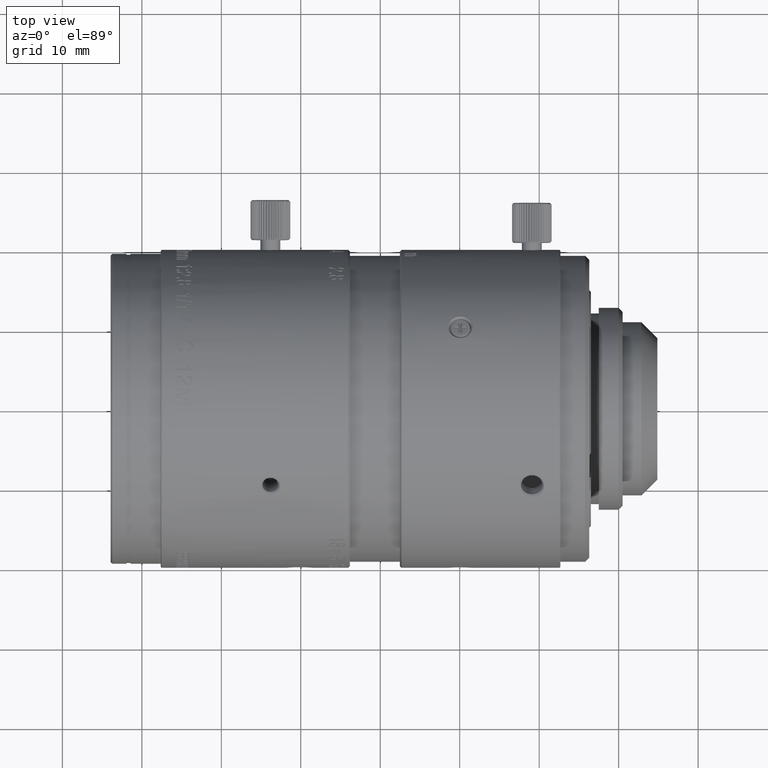
[diagram: clean part render]
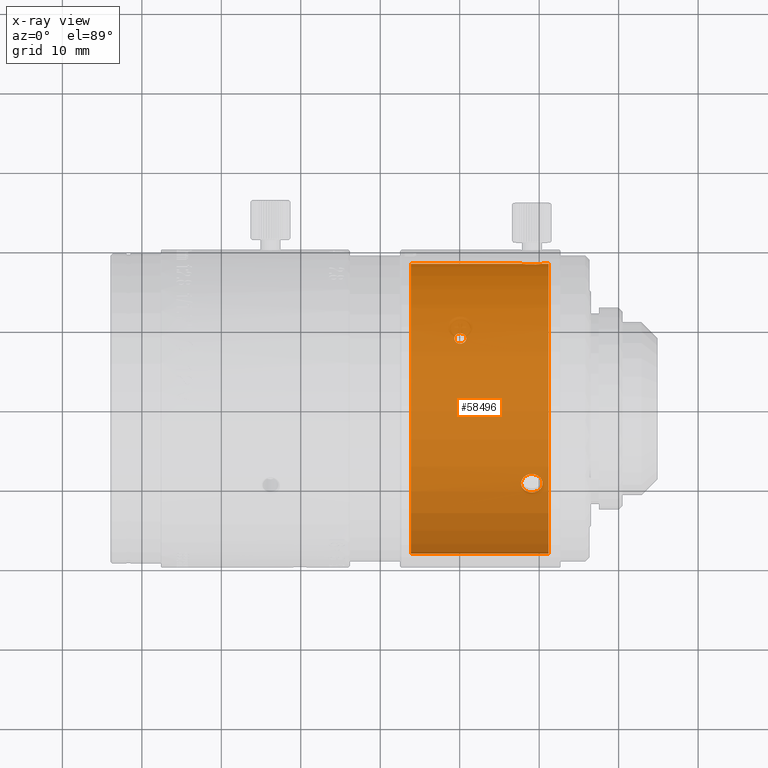
[diagram: x-ray — body ghosted, one internal face saturated and labeled with its STEP entity id]
A machine part, top view, then the same camera in x-ray: the body is ghosted and one INTERNAL B-rep face — a face not visible from any outside direction — is saturated and labeled: STEP entity #58496.
In plain terms, the highlighted cylindrical surface (partial cylindrical patch) has radius 18.25 mm, axis along (-1, 0, 0).
Its self-contained STEP definition (entity closure, byte-faithful):
#473 = CARTESIAN_POINT ( 'NONE',  ( 18.21201994344940189, 1.178806398260078048, 3.182209422252992859 ) ) ;
#763 = CARTESIAN_POINT ( 'NONE',  ( 18.25000000000000000, -2.223591347414999774E-10, 0.4000000000004000356 ) ) ;
#793 = CARTESIAN_POINT ( 'NONE',  ( -10.24160475624207045, 15.10552053162313868, 2.847730534119028878 ) ) ;
#1005 = CARTESIAN_POINT ( 'NONE',  ( 18.23818690041514756, 0.6767688913905309800, 3.681533865024833929 ) ) ;
#1874 = CARTESIAN_POINT ( 'NONE',  ( -8.171224282270181050, 16.31899554044267830, 3.325672726727420425 ) ) ;
#1932 = CARTESIAN_POINT ( 'NONE',  ( 9.637747126533200870, 15.49778430396090734, 11.03617175232352920 ) ) ;
#2651 = CARTESIAN_POINT ( 'NONE',  ( 18.23735179251326954, 0.6776517056569397734, 1.331564555934361849 ) ) ;
#2957 = CARTESIAN_POINT ( 'NONE',  ( -8.967816235690218463, 15.89568390805708908, 3.849661445437829066 ) ) ;
#3186 = CARTESIAN_POINT ( 'NONE',  ( 18.20244588868660074, 1.317173215997431646, 2.200826328364392737 ) ) ;
#3635 = B_SPLINE_CURVE_WITH_KNOTS ( 'NONE', 3,
 ( #16164, #50179, #40700, #66922, #75300, #17824, #83123, #32333, #84239, #74731, #7818, #75863, #101523, #102097, #66379, #109918, #25087, #33442 ),
 .UNSPECIFIED., .F., .F.,
 ( 4, 2, 2, 2, 2, 2, 2, 2, 4 ),
 ( 0.000000000000000000, 0.1249999999999999722, 0.2499999999999999445, 0.3749999999999999445, 0.5000000000000000000, 0.6250000000000001110, 0.7500000000000000000, 0.8750000000000000000, 1.000000000000000000 ),
 .UNSPECIFIED. ) ;
#3843 = EDGE_LOOP ( 'NONE', ( #24070, #89315 ) ) ;
#4316 = EDGE_CURVE ( 'NONE', #25422, #9089, #25828, .T. ) ;
#5879 = CARTESIAN_POINT ( 'NONE',  ( 8.795409768410802798, 15.99099535615530421, 10.84483248480708717 ) ) ;
#6272 = CARTESIAN_POINT ( 'NONE',  ( -8.399066606015200165, 16.20291269898136122, 1.418446653912373456 ) ) ;
#7080 = CARTESIAN_POINT ( 'NONE',  ( 18.19999999998999840, 1.350000000000000089, 2.499999990045000064 ) ) ;
#7444 = VERTEX_POINT ( 'NONE', #45672 ) ;
#7525 = CARTESIAN_POINT ( 'NONE',  ( 8.485240818254599304, 16.15749620143741083, 11.69784373218579887 ) ) ;
#7818 = CARTESIAN_POINT ( 'NONE',  ( -18.23541428679907739, 0.7305228261633018860, 11.30281319867156675 ) ) ;
#8075 = CARTESIAN_POINT ( 'NONE',  ( 8.467618639792814150, 16.16669213542273909, 11.40136035594729513 ) ) ;
#8347 = CARTESIAN_POINT ( 'NONE',  ( -18.25000000000000000, 2.175943846334000016E-10, 12.25000000000000000 ) ) ;
#9089 = VERTEX_POINT ( 'NONE', #79226 ) ;
#9375 = CARTESIAN_POINT ( 'NONE',  ( 18.23176373900325231, 0.8255521374181046257, 3.583173762509234805 ) ) ;
#9912 = CARTESIAN_POINT ( 'NONE',  ( 18.24252420069907998, 0.5219116463701478636, 1.254952901927654185 ) ) ;
#10286 = CARTESIAN_POINT ( 'NONE',  ( 9.521160142675507032, 15.56968116500071631, 12.10012759626849288 ) ) ;
#12413 = ORIENTED_EDGE ( 'NONE', *, *, #75764, .T. ) ;
#12928 = CARTESIAN_POINT ( 'NONE',  ( -18.25000000000000000, 1.768075854399999891E-10, 10.75000000000000000 ) ) ;
#14215 = CARTESIAN_POINT ( 'NONE',  ( 9.125000000000998313, 15.80496361907000136, 10.75000000000000000 ) ) ;
#14623 = CARTESIAN_POINT ( 'NONE',  ( -8.084358722268296660, 16.36185694119212997, 1.819473883120202418 ) ) ;
#14916 = ORIENTED_EDGE ( 'NONE', *, *, #4316, .T. ) ;
#15171 = CARTESIAN_POINT ( 'NONE',  ( -9.429833441454636755, 15.62587932341974728, 1.184885520350414723 ) ) ;
#15794 = DIRECTION ( 'NONE',  ( -3.789561257389000015E-14, 2.964768229334999793E-10, 1.000000000000000000 ) ) ;
#16164 = CARTESIAN_POINT ( 'NONE',  ( -18.25000000000000000, 2.175943846334000016E-10, 12.25000000000000000 ) ) ;
#16947 = VERTEX_POINT ( 'NONE', #94242 ) ;
#17734 = CARTESIAN_POINT ( 'NONE',  ( 18.24741334690450500, 0.3484016274931899249, 3.816306773004967123 ) ) ;
#17744 = CARTESIAN_POINT ( 'NONE',  ( 18.24755892267724278, 0.3440189633694313298, 1.181284329033035707 ) ) ;
#17824 = CARTESIAN_POINT ( 'NONE',  ( -18.24021923160532310, 0.6015497463485176555, 11.95882438390888325 ) ) ;
#18299 = CARTESIAN_POINT ( 'NONE',  ( 18.21845460298281694, 1.080119088565542063, 3.329524280401755298 ) ) ;
#18307 = CARTESIAN_POINT ( 'NONE',  ( 18.20892113521034972, 1.224192722461206140, 1.927717501249596843 ) ) ;
#18334 = B_SPLINE_CURVE_WITH_KNOTS ( 'NONE', 3,
 ( #53219, #62690, #87280, #52139, #10286, #86199, #86732, #62139, #44309, #78341, #69955, #104555, #1932, #44864, #78902, #36459, #53772, #87846 ),
 .UNSPECIFIED., .F., .F.,
 ( 4, 2, 2, 2, 2, 2, 2, 2, 4 ),
 ( 0.000000000000000000, 0.1250000000000010270, 0.2500000000000009992, 0.3750000000000009992, 0.5000000000000009992, 0.6250000000000009992, 0.7500000000000009992, 0.8750000000000011102, 1.000000000000000000 ),
 .UNSPECIFIED. ) ;
#18438 = EDGE_CURVE ( 'NONE', #33121, #49466, #105237, .T. ) ;
#18835 = CARTESIAN_POINT ( 'NONE',  ( 18.20723869925913618, 1.248765241872661580, 1.987067598657128453 ) ) ;
#19913 = B_SPLINE_CURVE_WITH_KNOTS ( 'NONE', 3,
 ( #14215, #97929, #82312, #5879, #39871, #73905, #65534, #81195, #8075, #66091, #7525, #48796, #50457, #41549, #100136, #66640, #59938, #109628 ),
 .UNSPECIFIED., .F., .F.,
 ( 4, 2, 2, 2, 2, 2, 2, 2, 4 ),
 ( 0.000000000000000000, 0.1250000000000000000, 0.2500000000000000000, 0.3750000000000000000, 0.5000000000000000000, 0.6250000000000000000, 0.7500000000000000000, 0.8750000000000000000, 1.000000000000000000 ),
 .UNSPECIFIED. ) ;
#19926 = CARTESIAN_POINT ( 'NONE',  ( 18.19999999998999840, 1.349999999386048533, 2.416741880223429284 ) ) ;
#20241 = CARTESIAN_POINT ( 'NONE',  ( -8.526390649432634916, 16.13662064551179043, 3.677446213509210970 ) ) ;
#21748 = B_SPLINE_CURVE_WITH_KNOTS ( 'NONE', 3,
 ( #77424, #94176, #109817, #473, #18299, #9375, #1005, #17734, #101995, #24982 ),
 .UNSPECIFIED., .F., .F.,
 ( 4, 2, 2, 2, 4 ),
 ( 0.000000000000000000, 0.2500000000000000000, 0.5000000000000000000, 0.7500000000000000000, 1.000000000000000000 ),
 .UNSPECIFIED. ) ;
#21910 = CARTESIAN_POINT ( 'NONE',  ( -7.930929461486919685, 16.43663158563608917, 2.321896040456643551 ) ) ;
#21920 = VERTEX_POINT ( 'NONE', #104677 ) ;
#22444 = CARTESIAN_POINT ( 'NONE',  ( -9.282157949082110449, 15.71419863531012950, 1.150338553421159205 ) ) ;
#23533 = CARTESIAN_POINT ( 'NONE',  ( -10.12861132931660180, 15.18151262936952151, 1.822155060468384491 ) ) ;
#24070 = ORIENTED_EDGE ( 'NONE', *, *, #52454, .T. ) ;
#24163 = ORIENTED_EDGE ( 'NONE', *, *, #87492, .T. ) ;
#24201 = DIRECTION ( 'NONE',  ( -1.000000000000000000, 1.937617877964999626E-11, 0.000000000000000000 ) ) ;
#24436 = VECTOR ( 'NONE', #89054, 1000.000000000000000 ) ;
#24561 = DIRECTION ( 'NONE',  ( 0.000000000000000000, 4.076506073653000229E-11, 1.000000000000000000 ) ) ;
#24659 = ORIENTED_EDGE ( 'NONE', *, *, #73863, .T. ) ;
#24982 = CARTESIAN_POINT ( 'NONE',  ( 18.25000000000000000, 0.000000000000000000, 3.850000000000000089 ) ) ;
#25087 = CARTESIAN_POINT ( 'NONE',  ( -18.24999999999905498, 0.09801174784820172736, 10.75000000000000178 ) ) ;
#25422 = VERTEX_POINT ( 'NONE', #45081 ) ;
#25521 = DIRECTION ( 'NONE',  ( 0.000000000000000000, 0.000000000000000000, 1.000000000000000000 ) ) ;
#25828 = LINE ( 'NONE', #763, #79417 ) ;
#26633 = CARTESIAN_POINT ( 'NONE',  ( 18.19999999998999840, 1.350000000000000089, 2.499999990045000064 ) ) ;
#26944 = CARTESIAN_POINT ( 'NONE',  ( -9.832600706811339464, 15.37526140016607101, 3.581553348860236685 ) ) ;
#27188 = CARTESIAN_POINT ( 'NONE',  ( 18.22071367410376652, 1.036727549627280309, 1.627550106102633620 ) ) ;
#27493 = CARTESIAN_POINT ( 'NONE',  ( -9.277656032226021310, 15.71685698508687423, 3.850333493162181320 ) ) ;
#27726 = CARTESIAN_POINT ( 'NONE',  ( 18.24113940491198349, 0.5680101965822746957, 1.275109593344490699 ) ) ;
#28044 = CARTESIAN_POINT ( 'NONE',  ( -7.930929516922359035, 16.43663155888789618, 2.677905817365963337 ) ) ;
#28269 = CARTESIAN_POINT ( 'NONE',  ( 18.25000000000000000, 0.000000000000000000, 1.149999999999999911 ) ) ;
#29557 = ORIENTED_EDGE ( 'NONE', *, *, #74398, .T. ) ;
#31912 = CARTESIAN_POINT ( 'NONE',  ( -10.24108617161461687, 15.10586797246788215, 2.150944013116264930 ) ) ;
#32333 = CARTESIAN_POINT ( 'NONE',  ( -18.23538161100663402, 0.7312877936519367461, 11.69376854395387966 ) ) ;
#33121 = VERTEX_POINT ( 'NONE', #89526 ) ;
#33178 = DIRECTION ( 'NONE',  ( 1.000000000000000000, 0.000000000000000000, 0.000000000000000000 ) ) ;
#33442 = CARTESIAN_POINT ( 'NONE',  ( -18.25000000000000000, 1.768075854399999891E-10, 10.75000000000000000 ) ) ;
#34769 = CARTESIAN_POINT ( 'NONE',  ( -7.930865704891999712, 16.43666234888000233, 2.500000000000000000 ) ) ;
#34998 = CARTESIAN_POINT ( 'NONE',  ( 18.25000000000000711, 0.1666472960250791058, 1.150000000000000133 ) ) ;
#35308 = CARTESIAN_POINT ( 'NONE',  ( -10.12760440312805166, 15.18218849731848685, 3.180526117287121757 ) ) ;
#35567 = AXIS2_PLACEMENT_3D ( 'NONE', #84477, #100652, #24201 ) ;
#36459 = CARTESIAN_POINT ( 'NONE',  ( 9.290994109297280090, 15.70821817163643352, 10.76844117733740447 ) ) ;
#36514 = VECTOR ( 'NONE', #39215, 1000.000000000000000 ) ;
#36632 = CARTESIAN_POINT ( 'NONE',  ( 18.24226666234678618, 0.5307611182724265575, 1.258707180324143859 ) ) ;
#37180 = CARTESIAN_POINT ( 'NONE',  ( 18.20703431855590182, 1.251746418612266432, 1.994366992552249584 ) ) ;
#37719 = VECTOR ( 'NONE', #24561, 1000.000000000000000 ) ;
#39215 = DIRECTION ( 'NONE',  ( 0.000000000000000000, -1.605545610301000170E-11, 1.000000000000000000 ) ) ;
#39433 = EDGE_LOOP ( 'NONE', ( #14916, #101518, #12413, #29557, #24659, #42064, #107776, #93121, #49620 ) ) ;
#39871 = CARTESIAN_POINT ( 'NONE',  ( 8.723159346361796906, 16.03040713956539420, 10.89987240374990840 ) ) ;
#40271 = CARTESIAN_POINT ( 'NONE',  ( -9.711528076457131675, 15.45238123344871184, 1.322553780413593616 ) ) ;
#40700 = CARTESIAN_POINT ( 'NONE',  ( -18.24922421367979553, 0.1923018803100600693, 12.23190358067597039 ) ) ;
#41549 = CARTESIAN_POINT ( 'NONE',  ( 8.726917458131071115, 16.02836235197037240, 12.10333193014129982 ) ) ;
#41793 = CIRCLE ( 'NONE', #100570, 18.25000000000000000 ) ;
#42064 = ORIENTED_EDGE ( 'NONE', *, *, #65647, .F. ) ;
#42777 = B_SPLINE_CURVE_WITH_KNOTS ( 'NONE', 3,
 ( #26633, #19926, #45577, #3186, #79621, #94185, #60688, #86908, #94731, #37180, #18835, #18307, #104192, #79084, #27188, #88013, #70129, #2651, #51764, #104730, #27726, #52313, #36632, #86366, #9912, #17744, #34998, #28269 ),
 .UNSPECIFIED., .F., .F.,
 ( 4, 2, 2, 1, 1, 2, 2, 2, 2, 2, 2, 1, 1, 2, 2, 4 ),
 ( 0.000000000000000000, 0.1250000000000019984, 0.1875000000000027200, 0.2187500000000031086, 0.2343750000000033029, 0.2421875000000033862, 0.2500000000000034972, 0.3750000000000038303, 0.5000000000000041078, 0.6250000000000044409, 0.6875000000000048850, 0.7187500000000049960, 0.7343750000000051070, 0.7421875000000049960, 0.7500000000000048850, 1.000000000000000000 ),
 .UNSPECIFIED. ) ;
#44309 = CARTESIAN_POINT ( 'NONE',  ( 9.766956764539722613, 15.41651891933187990, 11.59863964406244818 ) ) ;
#44864 = CARTESIAN_POINT ( 'NONE',  ( 9.517510248787850458, 15.57191339146587872, 10.89666806984771341 ) ) ;
#45081 = CARTESIAN_POINT ( 'NONE',  ( 18.25000000000000000, 0.000000000000000000, 0.4000000000004000356 ) ) ;
#45348 = CARTESIAN_POINT ( 'NONE',  ( -10.26913429510999975, 15.08666234887999913, 2.499999971296000378 ) ) ;
#45577 = CARTESIAN_POINT ( 'NONE',  ( 18.20061147216415520, 1.342277398203096217, 2.330908151477031343 ) ) ;
#45672 = CARTESIAN_POINT ( 'NONE',  ( 9.125000000002000178, 15.80496361907000136, 12.25000000000000000 ) ) ;
#48796 = CARTESIAN_POINT ( 'NONE',  ( 8.553633817459814992, 16.12139397695019838, 11.88211497729700028 ) ) ;
#49466 = VERTEX_POINT ( 'NONE', #12928 ) ;
#49620 = ORIENTED_EDGE ( 'NONE', *, *, #94785, .T. ) ;
#49745 = CARTESIAN_POINT ( 'NONE',  ( -7.930865704891999712, 16.43666234888000233, 2.500000000000000000 ) ) ;
#50179 = CARTESIAN_POINT ( 'NONE',  ( -18.24999999999883116, 0.09893049394060104973, 12.25000000000000355 ) ) ;
#50457 = CARTESIAN_POINT ( 'NONE',  ( 8.602601346345547739, 16.09542599880312608, 11.96382824768745756 ) ) ;
#50476 = DIRECTION ( 'NONE',  ( 0.000000000000000000, 0.000000000000000000, 1.000000000000000000 ) ) ;
#51697 = CARTESIAN_POINT ( 'NONE',  ( 9.125000000000998313, 15.80496361907000136, 10.75000000000000000 ) ) ;
#51764 = CARTESIAN_POINT ( 'NONE',  ( 18.23865415366183385, 0.6419706774755093992, 1.311823642223150621 ) ) ;
#52139 = CARTESIAN_POINT ( 'NONE',  ( 9.450903326031971474, 15.61254597421051393, 12.15516751518353900 ) ) ;
#52313 = CARTESIAN_POINT ( 'NONE',  ( 18.24194517491636702, 0.5416683561406349101, 1.263388880075568821 ) ) ;
#52371 = CARTESIAN_POINT ( 'NONE',  ( -10.26913429510999975, 15.08666234887999913, 2.499999971296000378 ) ) ;
#52454 = EDGE_CURVE ( 'NONE', #68473, #16947, #89417, .T. ) ;
#53219 = CARTESIAN_POINT ( 'NONE',  ( 9.125000000002000178, 15.80496361907000136, 12.25000000000000000 ) ) ;
#53772 = CARTESIAN_POINT ( 'NONE',  ( 9.209801147306585278, 15.75600365384097579, 10.75000000000000178 ) ) ;
#54441 = VERTEX_POINT ( 'NONE', #51697 ) ;
#57022 = CARTESIAN_POINT ( 'NONE',  ( -8.529642128600153583, 16.13490580706423216, 1.320418745151348938 ) ) ;
#57191 = FACE_BOUND ( 'NONE', #71515, .T. ) ;
#57738 = FACE_OUTER_BOUND ( 'NONE', #39433, .T. ) ;
#58496 = ADVANCED_FACE ( 'NONE', ( #57738, #109647, #57191 ), #91250, .F. ) ;
#59938 = CARTESIAN_POINT ( 'NONE',  ( 9.040198852679404595, 15.85392358429913529, 12.25000000000000178 ) ) ;
#59947 = CARTESIAN_POINT ( 'NONE',  ( 18.25000000000000000, 0.000000000000000000, 17.69999999999999929 ) ) ;
#60688 = CARTESIAN_POINT ( 'NONE',  ( 18.20533127300837251, 1.276418349102181438, 2.059334156763576562 ) ) ;
#62084 = CARTESIAN_POINT ( 'NONE',  ( -9.426083256348725570, 15.62814559343611975, 3.816318324593665601 ) ) ;
#62139 = CARTESIAN_POINT ( 'NONE',  ( 9.751096170967988641, 15.42660199852584135, 11.69342054739705539 ) ) ;
#62690 = CARTESIAN_POINT ( 'NONE',  ( 9.210680058455013253, 15.75549621425282076, 12.25000000000000355 ) ) ;
#65534 = CARTESIAN_POINT ( 'NONE',  ( 8.551069903782234860, 16.12275191327516310, 11.12310877173660018 ) ) ;
#65647 = EDGE_CURVE ( 'NONE', #95442, #93096, #65859, .T. ) ;
#65859 = LINE ( 'NONE', #68093, #37719 ) ;
#66091 = CARTESIAN_POINT ( 'NONE',  ( 8.467928082200833373, 16.16653005518440622, 11.60149013695270703 ) ) ;
#66379 = CARTESIAN_POINT ( 'NONE',  ( -18.24640522698238954, 0.3733557737923145492, 10.84235644520383346 ) ) ;
#66501 = CARTESIAN_POINT ( 'NONE',  ( -8.972369393929289672, 15.89311430779291534, 1.149666507946828675 ) ) ;
#66640 = CARTESIAN_POINT ( 'NONE',  ( 8.958218930161883975, 15.90034601088958688, 12.23155882266260797 ) ) ;
#66922 = CARTESIAN_POINT ( 'NONE',  ( -18.24631316060136044, 0.3784447906806577278, 12.15517369962487493 ) ) ;
#68093 = CARTESIAN_POINT ( 'NONE',  ( -18.25000000000000000, 2.175943846334000016E-10, 12.25000000000000000 ) ) ;
#68473 = VERTEX_POINT ( 'NONE', #52371 ) ;
#69955 = CARTESIAN_POINT ( 'NONE',  ( 9.750181762871163116, 15.42718220655390304, 11.30215626782330851 ) ) ;
#70129 = CARTESIAN_POINT ( 'NONE',  ( 18.23293606754282692, 0.7901064354701725634, 1.401799332934495323 ) ) ;
#70427 = CARTESIAN_POINT ( 'NONE',  ( -10.26907577892596635, 15.08670217945879521, 2.678103938415117735 ) ) ;
#71515 = EDGE_LOOP ( 'NONE', ( #24163, #95792 ) ) ;
#72276 = CARTESIAN_POINT ( 'NONE',  ( -18.25000000000000000, 4.397657829812000191E-10, 0.4000000000004000356 ) ) ;
#72659 = CARTESIAN_POINT ( 'NONE',  ( -18.25000000000000000, 4.397639656475000487E-10, 17.69999999999999929 ) ) ;
#72766 = AXIS2_PLACEMENT_3D ( 'NONE', #76154, #50476, #33178 ) ;
#72911 = CIRCLE ( 'NONE', #35567, 18.25000000000000000 ) ;
#73863 = EDGE_CURVE ( 'NONE', #101614, #93096, #41793, .T. ) ;
#73905 = CARTESIAN_POINT ( 'NONE',  ( 8.599152214641581082, 16.09726819158062838, 11.04115147098049476 ) ) ;
#74398 = EDGE_CURVE ( 'NONE', #21920, #101614, #99493, .T. ) ;
#74731 = CARTESIAN_POINT ( 'NONE',  ( -18.23458646504654013, 0.7499042990840875111, 11.39896856515190215 ) ) ;
#75300 = CARTESIAN_POINT ( 'NONE',  ( -18.24431859288017321, 0.4607589346324100776, 12.10009066382320064 ) ) ;
#75764 = EDGE_CURVE ( 'NONE', #81739, #21920, #21748, .T. ) ;
#75863 = CARTESIAN_POINT ( 'NONE',  ( -18.23834860338698505, 0.6531753455799950148, 11.11815492333882993 ) ) ;
#76154 = CARTESIAN_POINT ( 'NONE',  ( 0.000000000000000000, 0.000000000000000000, 0.000000000000000000 ) ) ;
#76861 = CARTESIAN_POINT ( 'NONE',  ( 0.000000000000000000, 0.000000000000000000, 17.69999999999999929 ) ) ;
#77408 = DIRECTION ( 'NONE',  ( 1.000000000000000000, 0.000000000000000000, 0.000000000000000000 ) ) ;
#77424 = CARTESIAN_POINT ( 'NONE',  ( 18.19999999998999840, 1.350000000000000089, 2.499999990045000064 ) ) ;
#78341 = CARTESIAN_POINT ( 'NONE',  ( 9.766661677731205415, 15.41670586419947853, 11.39850986304087499 ) ) ;
#78902 = CARTESIAN_POINT ( 'NONE',  ( 9.446318925712381187, 15.61530494164150262, 10.84220588668699747 ) ) ;
#79084 = CARTESIAN_POINT ( 'NONE',  ( 18.21707795397153618, 1.098500045306442185, 1.710311215320791334 ) ) ;
#79226 = CARTESIAN_POINT ( 'NONE',  ( 18.25000000000000000, 0.000000000000000000, 1.149999999999999911 ) ) ;
#79417 = VECTOR ( 'NONE', #15794, 1000.000000000000000 ) ;
#79621 = CARTESIAN_POINT ( 'NONE',  ( 18.20321022890428964, 1.306555580129062921, 2.157252156929616582 ) ) ;
#80155 = EDGE_CURVE ( 'NONE', #95442, #49466, #3635, .T. ) ;
#81112 = CARTESIAN_POINT ( 'NONE',  ( 18.25000000000000000, 0.000000000000000000, 3.850000000000000089 ) ) ;
#81195 = CARTESIAN_POINT ( 'NONE',  ( 8.484281139309336695, 16.15799799806734072, 11.30657945259348196 ) ) ;
#81605 = CARTESIAN_POINT ( 'NONE',  ( -8.821329464160353240, 15.97730035799422055, 1.183681677195743243 ) ) ;
#81739 = VERTEX_POINT ( 'NONE', #7080 ) ;
#82312 = CARTESIAN_POINT ( 'NONE',  ( 8.958079732926242045, 15.90043939560705333, 10.76809227587927076 ) ) ;
#83123 = CARTESIAN_POINT ( 'NONE',  ( -18.23825018865478853, 0.6558615648265185838, 11.87704721043996159 ) ) ;
#83317 = B_SPLINE_CURVE_WITH_KNOTS ( 'NONE', 3,
 ( #49745, #21910, #91634, #14623, #108930, #6272, #57022, #81605, #66501, #22444, #15171, #40271, #108367, #99443, #23533, #31912, #99990, #100539 ),
 .UNSPECIFIED., .F., .F.,
 ( 4, 2, 2, 2, 2, 2, 2, 2, 4 ),
 ( 0.000000000000000000, 0.1249999999999999167, 0.2499999999999999445, 0.3749999999999999445, 0.5000000000000000000, 0.6250000000000000000, 0.7500000000000000000, 0.8750000000000001110, 1.000000000000000000 ),
 .UNSPECIFIED. ) ;
#84239 = CARTESIAN_POINT ( 'NONE',  ( -18.23457864885848068, 0.7500943324929607581, 11.59892514238142525 ) ) ;
#84477 = CARTESIAN_POINT ( 'NONE',  ( 0.000000000000000000, 0.000000000000000000, 0.4000000000004000356 ) ) ;
#85572 = CARTESIAN_POINT ( 'NONE',  ( -8.083269937949259187, 16.36239103207576662, 3.177844937833687933 ) ) ;
#86144 = CARTESIAN_POINT ( 'NONE',  ( -9.708417249050951270, 15.45433967413634413, 3.679581257093453850 ) ) ;
#86199 = CARTESIAN_POINT ( 'NONE',  ( 9.641067078131449364, 15.49571836467160324, 11.95884852900150896 ) ) ;
#86366 = CARTESIAN_POINT ( 'NONE',  ( 18.24247568895117766, 0.5235759517031834953, 1.255659431005023974 ) ) ;
#86732 = CARTESIAN_POINT ( 'NONE',  ( 9.687177783918233587, 15.46681972285024464, 11.87689122828505894 ) ) ;
#86908 = CARTESIAN_POINT ( 'NONE',  ( 18.20630102965955999, 1.262407417788738107, 2.021394744528413501 ) ) ;
#87217 = CARTESIAN_POINT ( 'NONE',  ( -7.961522319060637898, 16.42197477587292553, 2.849055968405893147 ) ) ;
#87280 = CARTESIAN_POINT ( 'NONE',  ( 9.291144581450911488, 15.70814431565404767, 12.23190772413009952 ) ) ;
#87492 = EDGE_CURVE ( 'NONE', #54441, #7444, #19913, .T. ) ;
#87846 = CARTESIAN_POINT ( 'NONE',  ( 9.125000000000998313, 15.80496361907000136, 10.75000000000000000 ) ) ;
#88013 = CARTESIAN_POINT ( 'NONE',  ( 18.22931406219623440, 0.8725870818071782553, 1.463387915283184126 ) ) ;
#88344 = EDGE_CURVE ( 'NONE', #7444, #54441, #18334, .T. ) ;
#89054 = DIRECTION ( 'NONE',  ( 0.000000000000000000, -2.540658913441000078E-11, 1.000000000000000000 ) ) ;
#89315 = ORIENTED_EDGE ( 'NONE', *, *, #101072, .T. ) ;
#89417 = B_SPLINE_CURVE_WITH_KNOTS ( 'NONE', 3,
 ( #45348, #70427, #793, #35308, #95042, #26944, #86144, #62084, #27493, #2957, #104501, #20241, #105043, #1874, #85572, #87217, #28044, #34769 ),
 .UNSPECIFIED., .F., .F.,
 ( 4, 2, 2, 2, 2, 2, 2, 2, 4 ),
 ( 0.000000000000000000, 0.1250000000000003608, 0.2500000000000007216, 0.3750000000000011102, 0.5000000000000008882, 0.6250000000000006661, 0.7500000000000004441, 0.8750000000000003331, 1.000000000000000000 ),
 .UNSPECIFIED. ) ;
#89526 = CARTESIAN_POINT ( 'NONE',  ( -18.25000000000000000, 3.536152627286000523E-10, 0.4000000000004000356 ) ) ;
#91250 = CYLINDRICAL_SURFACE ( 'NONE', #72766, 18.25000000000000000 ) ;
#91634 = CARTESIAN_POINT ( 'NONE',  ( -7.960962139967220352, 16.42225016008346472, 2.152269464880556260 ) ) ;
#93096 = VERTEX_POINT ( 'NONE', #72659 ) ;
#93121 = ORIENTED_EDGE ( 'NONE', *, *, #18438, .F. ) ;
#94176 = CARTESIAN_POINT ( 'NONE',  ( 18.20000531665441912, 1.349928323621902182, 2.678826457999679889 ) ) ;
#94185 = CARTESIAN_POINT ( 'NONE',  ( 18.20458604129612468, 1.287058768344233828, 2.091961253307764057 ) ) ;
#94242 = CARTESIAN_POINT ( 'NONE',  ( -7.930865704891999712, 16.43666234888000233, 2.500000000000000000 ) ) ;
#94731 = CARTESIAN_POINT ( 'NONE',  ( 18.20673813672155106, 1.256057116417061525, 2.005172398680763468 ) ) ;
#94785 = EDGE_CURVE ( 'NONE', #33121, #25422, #72911, .T. ) ;
#95042 = CARTESIAN_POINT ( 'NONE',  ( -10.04609280854956310, 15.23662426737078057, 3.327313124917762988 ) ) ;
#95442 = VERTEX_POINT ( 'NONE', #8347 ) ;
#95792 = ORIENTED_EDGE ( 'NONE', *, *, #88344, .T. ) ;
#97929 = CARTESIAN_POINT ( 'NONE',  ( 9.039319941548853876, 15.85443102387695191, 10.75000000000000000 ) ) ;
#99443 = CARTESIAN_POINT ( 'NONE',  ( -10.04705255440128120, 15.23598558313577733, 1.674327262459706978 ) ) ;
#99493 = LINE ( 'NONE', #81112, #36514 ) ;
#99990 = CARTESIAN_POINT ( 'NONE',  ( -10.26907572031921134, 15.08670221935102163, 2.322094157950824300 ) ) ;
#100136 = CARTESIAN_POINT ( 'NONE',  ( 8.800091304453529162, 15.98840463273320367, 12.15779411331303450 ) ) ;
#100539 = CARTESIAN_POINT ( 'NONE',  ( -10.26913429510999975, 15.08666234887999913, 2.499999971296000378 ) ) ;
#100570 = AXIS2_PLACEMENT_3D ( 'NONE', #76861, #25521, #77408 ) ;
#100652 = DIRECTION ( 'NONE',  ( 0.000000000000000000, 0.000000000000000000, -1.000000000000000000 ) ) ;
#101072 = EDGE_CURVE ( 'NONE', #16947, #68473, #83317, .T. ) ;
#101518 = ORIENTED_EDGE ( 'NONE', *, *, #104798, .F. ) ;
#101523 = CARTESIAN_POINT ( 'NONE',  ( -18.24034296448477122, 0.5978041176933813761, 11.03635637500270938 ) ) ;
#101614 = VERTEX_POINT ( 'NONE', #59947 ) ;
#101995 = CARTESIAN_POINT ( 'NONE',  ( 18.25000000000000000, 0.1775200213806628069, 3.850000000000000089 ) ) ;
#102097 = CARTESIAN_POINT ( 'NONE',  ( -18.24442105222702182, 0.4567074492664723873, 10.89685145306561687 ) ) ;
#104192 = CARTESIAN_POINT ( 'NONE',  ( 18.21118588661480686, 1.192077878906043109, 1.860264854170689208 ) ) ;
#104501 = CARTESIAN_POINT ( 'NONE',  ( -8.817491721700861262, 15.97941497995551074, 3.815114477315950214 ) ) ;
#104555 = CARTESIAN_POINT ( 'NONE',  ( 9.684719819719278533, 15.46836116906943914, 11.11788502269389234 ) ) ;
#104677 = CARTESIAN_POINT ( 'NONE',  ( 18.25000000000000000, 0.000000000000000000, 3.850000000000000089 ) ) ;
#104730 = CARTESIAN_POINT ( 'NONE',  ( 18.24035337462232675, 0.5920646107168552330, 1.286613479258874149 ) ) ;
#104798 = EDGE_CURVE ( 'NONE', #81739, #9089, #42777, .T. ) ;
#105043 = CARTESIAN_POINT ( 'NONE',  ( -8.396795335880254285, 16.20408435572615957, 3.579481970718259909 ) ) ;
#105237 = LINE ( 'NONE', #72276, #24436 ) ;
#107776 = ORIENTED_EDGE ( 'NONE', *, *, #80155, .T. ) ;
#108367 = CARTESIAN_POINT ( 'NONE',  ( -9.834751020576977254, 15.37388025462936803, 1.420518021752953608 ) ) ;
#108930 = CARTESIAN_POINT ( 'NONE',  ( -8.172257275739987392, 16.31848371639369333, 1.672686879484626132 ) ) ;
#109628 = CARTESIAN_POINT ( 'NONE',  ( 9.125000000002000178, 15.80496361907000136, 12.25000000000000000 ) ) ;
#109647 = FACE_BOUND ( 'NONE', #3843, .T. ) ;
#109817 = CARTESIAN_POINT ( 'NONE',  ( 18.20259202829913647, 1.316395987717391858, 2.849329115187086980 ) ) ;
#109918 = CARTESIAN_POINT ( 'NONE',  ( -18.24921157442828701, 0.1922892426185868475, 10.76847128904076456 ) ) ;